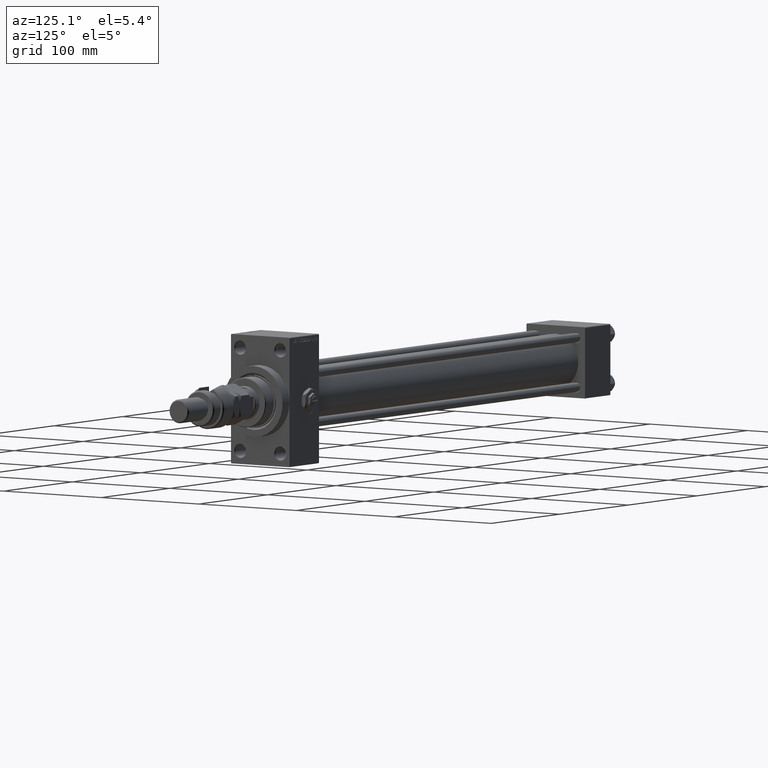
[diagram: clean part render]
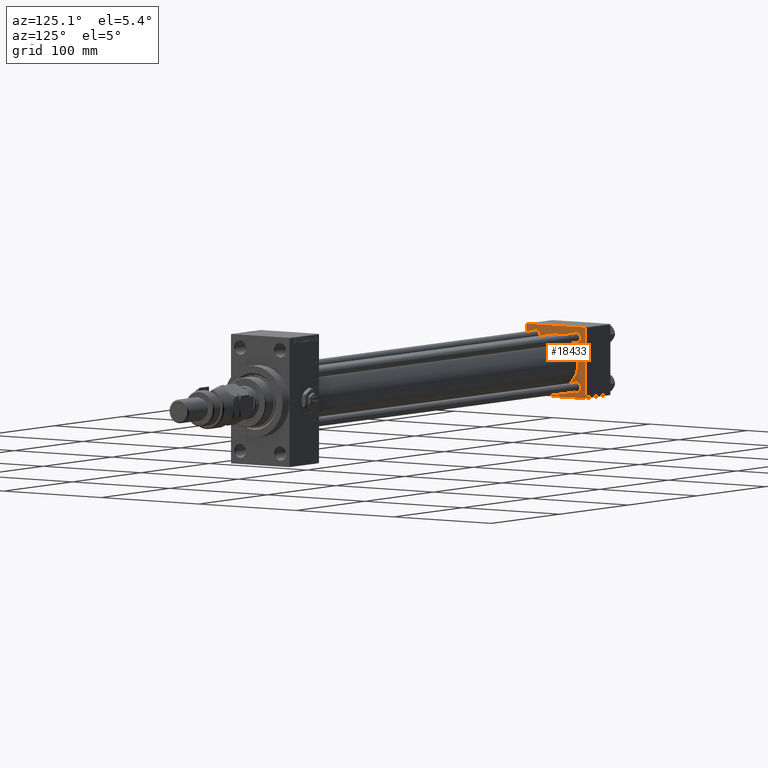
[diagram: same view with one face highlighted and labeled with its STEP entity id]
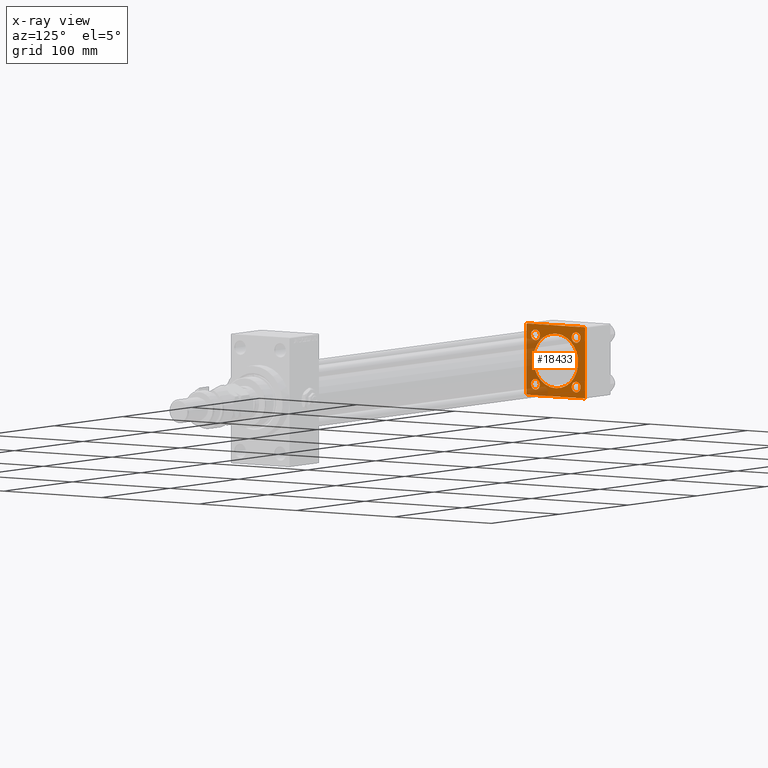
[diagram: x-ray of the same camera — body ghosted, the highlighted face saturated]
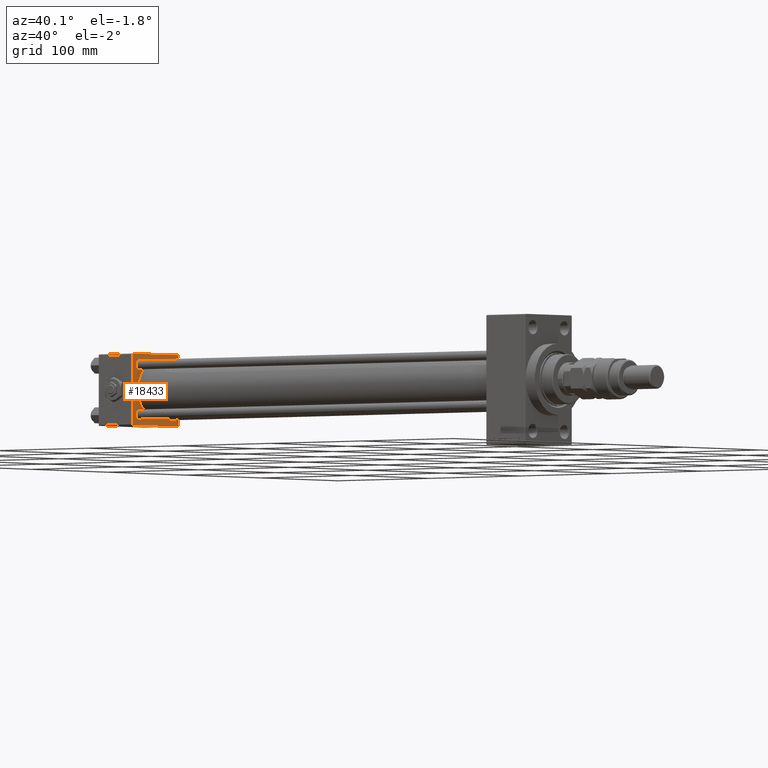
[diagram: same view with one face highlighted and labeled with its STEP entity id]
A machine part, auxiliary view. The second image highlights one B-rep face of the part: STEP entity #18433.
The next image is the same camera in x-ray: the body ghosted, the highlighted face saturated — about 30% of this face is hidden behind the body in this view.
A second angle (auxiliary view) of the same face is appended — the face is thin or edge-on in the first view.
In plain terms, the highlighted planar face has unit normal (-1, 0, 0).
Its self-contained STEP definition (entity closure, byte-faithful):
#447 = VECTOR ( 'NONE', #30084, 1000.000000000000114 ) ;
#714 = LINE ( 'NONE', #36101, #15416 ) ;
#757 = VERTEX_POINT ( 'NONE', #49649 ) ;
#972 = CIRCLE ( 'NONE', #48699, 4.499999999999948486 ) ;
#1078 = AXIS2_PLACEMENT_3D ( 'NONE', #18814, #35065, #38751 ) ;
#1252 = CARTESIAN_POINT ( 'NONE',  ( 37.00000000000000000, -29.50000000000000000, -30.00000000000000711 ) ) ;
#2780 = VECTOR ( 'NONE', #8821, 1000.000000000000000 ) ;
#3938 = CARTESIAN_POINT ( 'NONE',  ( 37.00000000000000000, 20.84999999999999787, 16.35000000000005116 ) ) ;
#4206 = VERTEX_POINT ( 'NONE', #49062 ) ;
#4613 = EDGE_CURVE ( 'NONE', #4206, #26607, #45304, .T. ) ;
#5128 = VERTEX_POINT ( 'NONE', #35006 ) ;
#5214 = CARTESIAN_POINT ( 'NONE',  ( 37.00000000000000000, -29.49999999999998579, 29.99999999999999289 ) ) ;
#5300 = EDGE_LOOP ( 'NONE', ( #38069, #23736 ) ) ;
#5595 = CIRCLE ( 'NONE', #44943, 4.499999999999948486 ) ;
#5912 = CARTESIAN_POINT ( 'NONE',  ( 36.99999999999997868, -2.602085213965210642E-15, 23.00000000000000000 ) ) ;
#6114 = AXIS2_PLACEMENT_3D ( 'NONE', #15644, #34543, #34806 ) ;
#6404 = ORIENTED_EDGE ( 'NONE', *, *, #23481, .T. ) ;
#7136 = VECTOR ( 'NONE', #24468, 1000.000000000000114 ) ;
#7230 = CARTESIAN_POINT ( 'NONE',  ( 37.00000000000000000, 20.84999999999999787, -20.85000000000000142 ) ) ;
#7622 = VERTEX_POINT ( 'NONE', #9310 ) ;
#7660 = CARTESIAN_POINT ( 'NONE',  ( 37.00000000000000000, -30.00000000000000000, 29.49999999999999289 ) ) ;
#7694 = LINE ( 'NONE', #44402, #7136 ) ;
#8821 = DIRECTION ( 'NONE',  ( 0.000000000000000000, 0.000000000000000000, -1.000000000000000000 ) ) ;
#9086 = CARTESIAN_POINT ( 'NONE',  ( 37.00000000000000000, 29.49999999999999289, 30.00000000000000000 ) ) ;
#9310 = CARTESIAN_POINT ( 'NONE',  ( 37.00000000000000000, 29.99999999999999289, 29.50000000000000000 ) ) ;
#9354 = AXIS2_PLACEMENT_3D ( 'NONE', #33741, #13544, #40827 ) ;
#9759 = ORIENTED_EDGE ( 'NONE', *, *, #14981, .F. ) ;
#10203 = CARTESIAN_POINT ( 'NONE',  ( 36.99999999999997868, -2.602085213965210642E-15, 0.000000000000000000 ) ) ;
#10490 = VERTEX_POINT ( 'NONE', #1252 ) ;
#10572 = VECTOR ( 'NONE', #27433, 1000.000000000000114 ) ;
#11053 = CIRCLE ( 'NONE', #9354, 4.499999999999948486 ) ;
#11343 = VECTOR ( 'NONE', #35249, 1000.000000000000000 ) ;
#11897 = VECTOR ( 'NONE', #28632, 1000.000000000000000 ) ;
#13127 = AXIS2_PLACEMENT_3D ( 'NONE', #10203, #45877, #41939 ) ;
#13281 = LINE ( 'NONE', #37148, #2780 ) ;
#13544 = DIRECTION ( 'NONE',  ( -1.000000000000000000, 0.000000000000000000, -0.000000000000000000 ) ) ;
#14094 = FACE_OUTER_BOUND ( 'NONE', #18270, .T. ) ;
#14910 = CARTESIAN_POINT ( 'NONE',  ( 37.00000000000000000, -20.84999999999999076, -16.35000000000005471 ) ) ;
#14933 = VERTEX_POINT ( 'NONE', #7660 ) ;
#14981 = EDGE_CURVE ( 'NONE', #4206, #10490, #28377, .T. ) ;
#15085 = ORIENTED_EDGE ( 'NONE', *, *, #39504, .T. ) ;
#15416 = VECTOR ( 'NONE', #32435, 1000.000000000000000 ) ;
#15483 = VERTEX_POINT ( 'NONE', #24303 ) ;
#15605 = DIRECTION ( 'NONE',  ( -1.000000000000000000, 0.000000000000000000, -0.000000000000000000 ) ) ;
#15644 = CARTESIAN_POINT ( 'NONE',  ( 37.00000000000000000, 0.000000000000000000, 0.000000000000000000 ) ) ;
#15696 = EDGE_CURVE ( 'NONE', #14933, #15483, #13281, .T. ) ;
#16568 = CARTESIAN_POINT ( 'NONE',  ( 37.00000000000000000, 29.99999999999999289, -30.00000000000000000 ) ) ;
#16754 = EDGE_CURVE ( 'NONE', #35440, #46021, #11053, .T. ) ;
#16848 = ORIENTED_EDGE ( 'NONE', *, *, #47855, .T. ) ;
#17845 = CIRCLE ( 'NONE', #1078, 23.00000000000000000 ) ;
#18270 = EDGE_LOOP ( 'NONE', ( #9759, #30847, #35276, #48909, #50676, #42797, #41199, #6404 ) ) ;
#18405 = CARTESIAN_POINT ( 'NONE',  ( 37.00000000000000000, 20.84999999999999787, 20.85000000000000142 ) ) ;
#18433 = ADVANCED_FACE ( 'NONE', ( #41886, #25381, #22483, #21715, #33501, #14094 ), #49253, .F. ) ;
#18435 = DIRECTION ( 'NONE',  ( 0.000000000000000000, 0.000000000000000000, 1.000000000000000000 ) ) ;
#18525 = EDGE_CURVE ( 'NONE', #48301, #5128, #17845, .T. ) ;
#18701 = CARTESIAN_POINT ( 'NONE',  ( 37.00000000000000000, -20.84999999999999076, 20.85000000000000497 ) ) ;
#18814 = CARTESIAN_POINT ( 'NONE',  ( 36.99999999999997868, -2.602085213965210642E-15, 0.000000000000000000 ) ) ;
#20137 = CIRCLE ( 'NONE', #38604, 4.499999999999948486 ) ;
#20213 = AXIS2_PLACEMENT_3D ( 'NONE', #30128, #39043, #38257 ) ;
#20537 = DIRECTION ( 'NONE',  ( 0.000000000000000000, 0.000000000000000000, 1.000000000000000000 ) ) ;
#21274 = ORIENTED_EDGE ( 'NONE', *, *, #33519, .T. ) ;
#21715 = FACE_BOUND ( 'NONE', #27543, .T. ) ;
#22460 = DIRECTION ( 'NONE',  ( -1.000000000000000000, 0.000000000000000000, -0.000000000000000000 ) ) ;
#22483 = FACE_BOUND ( 'NONE', #31125, .T. ) ;
#23481 = EDGE_CURVE ( 'NONE', #15483, #10490, #29823, .T. ) ;
#23694 = EDGE_CURVE ( 'NONE', #7622, #46197, #7694, .T. ) ;
#23736 = ORIENTED_EDGE ( 'NONE', *, *, #48221, .F. ) ;
#23744 = CARTESIAN_POINT ( 'NONE',  ( 37.00000000000000000, -30.00000000000000000, 29.49999999999999289 ) ) ;
#24145 = EDGE_LOOP ( 'NONE', ( #37090, #21274 ) ) ;
#24158 = ORIENTED_EDGE ( 'NONE', *, *, #31505, .T. ) ;
#24266 = LINE ( 'NONE', #23744, #10572 ) ;
#24303 = CARTESIAN_POINT ( 'NONE',  ( 37.00000000000000000, -30.00000000000000000, -29.50000000000001776 ) ) ;
#24468 = DIRECTION ( 'NONE',  ( 0.000000000000000000, -0.7071067811865474617, 0.7071067811865474617 ) ) ;
#24609 = CARTESIAN_POINT ( 'NONE',  ( 37.00000000000000000, 20.84999999999999787, 25.34999999999994813 ) ) ;
#24944 = EDGE_CURVE ( 'NONE', #46197, #28619, #43380, .T. ) ;
#25378 = VERTEX_POINT ( 'NONE', #24609 ) ;
#25381 = FACE_BOUND ( 'NONE', #31369, .T. ) ;
#26387 = DIRECTION ( 'NONE',  ( 0.000000000000000000, 0.000000000000000000, 1.000000000000000000 ) ) ;
#26607 = VERTEX_POINT ( 'NONE', #34777 ) ;
#26665 = CARTESIAN_POINT ( 'NONE',  ( 37.00000000000000000, -29.50000000000001066, -30.00000000000000711 ) ) ;
#27395 = CIRCLE ( 'NONE', #13127, 23.00000000000000000 ) ;
#27433 = DIRECTION ( 'NONE',  ( -0.000000000000000000, -0.7071067811865474617, -0.7071067811865474617 ) ) ;
#27543 = EDGE_LOOP ( 'NONE', ( #16848, #36269 ) ) ;
#28377 = LINE ( 'NONE', #16568, #11897 ) ;
#28619 = VERTEX_POINT ( 'NONE', #5214 ) ;
#28632 = DIRECTION ( 'NONE',  ( 0.000000000000000000, -1.000000000000000000, -1.156482317317871725E-16 ) ) ;
#29689 = DIRECTION ( 'NONE',  ( 0.000000000000000000, 0.000000000000000000, 1.000000000000000000 ) ) ;
#29823 = LINE ( 'NONE', #26665, #447 ) ;
#30084 = DIRECTION ( 'NONE',  ( 0.000000000000000000, 0.7071067811865474617, -0.7071067811865474617 ) ) ;
#30128 = CARTESIAN_POINT ( 'NONE',  ( 37.00000000000000000, -20.84999999999999076, 20.85000000000000497 ) ) ;
#30356 = VECTOR ( 'NONE', #41629, 999.9999999999998863 ) ;
#30847 = ORIENTED_EDGE ( 'NONE', *, *, #4613, .T. ) ;
#31125 = EDGE_LOOP ( 'NONE', ( #24158, #32020 ) ) ;
#31354 = DIRECTION ( 'NONE',  ( -1.000000000000000000, 0.000000000000000000, -0.000000000000000000 ) ) ;
#31369 = EDGE_LOOP ( 'NONE', ( #15085, #38124 ) ) ;
#31505 = EDGE_CURVE ( 'NONE', #38139, #757, #20137, .T. ) ;
#32020 = ORIENTED_EDGE ( 'NONE', *, *, #33098, .T. ) ;
#32067 = DIRECTION ( 'NONE',  ( -1.000000000000000000, 0.000000000000000000, -0.000000000000000000 ) ) ;
#32183 = AXIS2_PLACEMENT_3D ( 'NONE', #7230, #31354, #26387 ) ;
#32435 = DIRECTION ( 'NONE',  ( 0.000000000000000000, 0.000000000000000000, -1.000000000000000000 ) ) ;
#33098 = EDGE_CURVE ( 'NONE', #757, #38139, #46156, .T. ) ;
#33191 = AXIS2_PLACEMENT_3D ( 'NONE', #43171, #22460, #42396 ) ;
#33501 = FACE_BOUND ( 'NONE', #5300, .T. ) ;
#33519 = EDGE_CURVE ( 'NONE', #46021, #35440, #972, .T. ) ;
#33741 = CARTESIAN_POINT ( 'NONE',  ( 37.00000000000000000, -20.84999999999999076, -20.85000000000000497 ) ) ;
#34543 = DIRECTION ( 'NONE',  ( -1.000000000000000000, 0.000000000000000000, -0.000000000000000000 ) ) ;
#34740 = AXIS2_PLACEMENT_3D ( 'NONE', #48585, #32067, #20537 ) ;
#34777 = CARTESIAN_POINT ( 'NONE',  ( 37.00000000000000000, 29.99999999999999289, -29.50000000000000000 ) ) ;
#34806 = DIRECTION ( 'NONE',  ( -0.000000000000000000, 0.000000000000000000, 1.000000000000000000 ) ) ;
#35006 = CARTESIAN_POINT ( 'NONE',  ( 36.99999999999997868, 2.146024240737012665E-16, -23.00000000000000000 ) ) ;
#35065 = DIRECTION ( 'NONE',  ( 1.000000000000000000, -0.000000000000000000, 0.000000000000000000 ) ) ;
#35249 = DIRECTION ( 'NONE',  ( 0.000000000000000000, -1.000000000000000000, -1.156482317317871725E-16 ) ) ;
#35276 = ORIENTED_EDGE ( 'NONE', *, *, #38205, .F. ) ;
#35440 = VERTEX_POINT ( 'NONE', #47702 ) ;
#35768 = CARTESIAN_POINT ( 'NONE',  ( 37.00000000000000000, 29.99999999999999289, 30.00000000000000000 ) ) ;
#36101 = CARTESIAN_POINT ( 'NONE',  ( 37.00000000000000000, 29.99999999999999289, 30.00000000000000000 ) ) ;
#36269 = ORIENTED_EDGE ( 'NONE', *, *, #47205, .T. ) ;
#36697 = VERTEX_POINT ( 'NONE', #38491 ) ;
#37090 = ORIENTED_EDGE ( 'NONE', *, *, #16754, .T. ) ;
#37148 = CARTESIAN_POINT ( 'NONE',  ( 37.00000000000000000, -30.00000000000000000, 29.99999999999999289 ) ) ;
#37944 = VERTEX_POINT ( 'NONE', #3938 ) ;
#38064 = CIRCLE ( 'NONE', #32183, 4.499999999999948486 ) ;
#38069 = ORIENTED_EDGE ( 'NONE', *, *, #18525, .F. ) ;
#38124 = ORIENTED_EDGE ( 'NONE', *, *, #39866, .T. ) ;
#38139 = VERTEX_POINT ( 'NONE', #46372 ) ;
#38205 = EDGE_CURVE ( 'NONE', #7622, #26607, #714, .T. ) ;
#38257 = DIRECTION ( 'NONE',  ( 0.000000000000000000, 0.000000000000000000, 1.000000000000000000 ) ) ;
#38491 = CARTESIAN_POINT ( 'NONE',  ( 37.00000000000000000, 20.84999999999999787, -25.34999999999994813 ) ) ;
#38604 = AXIS2_PLACEMENT_3D ( 'NONE', #18701, #42302, #18435 ) ;
#38751 = DIRECTION ( 'NONE',  ( 0.000000000000000000, 0.000000000000000000, 1.000000000000000000 ) ) ;
#39043 = DIRECTION ( 'NONE',  ( -1.000000000000000000, 0.000000000000000000, -0.000000000000000000 ) ) ;
#39504 = EDGE_CURVE ( 'NONE', #36697, #44461, #38064, .T. ) ;
#39732 = DIRECTION ( 'NONE',  ( 0.000000000000000000, 0.000000000000000000, 1.000000000000000000 ) ) ;
#39866 = EDGE_CURVE ( 'NONE', #44461, #36697, #44799, .T. ) ;
#39987 = CARTESIAN_POINT ( 'NONE',  ( 37.00000000000000000, 20.84999999999999787, -16.35000000000005116 ) ) ;
#40827 = DIRECTION ( 'NONE',  ( 0.000000000000000000, 0.000000000000000000, 1.000000000000000000 ) ) ;
#41199 = ORIENTED_EDGE ( 'NONE', *, *, #15696, .T. ) ;
#41629 = DIRECTION ( 'NONE',  ( -0.000000000000000000, 0.7071067811865574537, 0.7071067811865376918 ) ) ;
#41886 = FACE_BOUND ( 'NONE', #24145, .T. ) ;
#41939 = DIRECTION ( 'NONE',  ( 0.000000000000000000, 0.000000000000000000, 1.000000000000000000 ) ) ;
#42302 = DIRECTION ( 'NONE',  ( -1.000000000000000000, 0.000000000000000000, -0.000000000000000000 ) ) ;
#42396 = DIRECTION ( 'NONE',  ( 0.000000000000000000, 0.000000000000000000, 1.000000000000000000 ) ) ;
#42797 = ORIENTED_EDGE ( 'NONE', *, *, #47324, .T. ) ;
#43171 = CARTESIAN_POINT ( 'NONE',  ( 37.00000000000000000, 20.84999999999999787, 20.85000000000000142 ) ) ;
#43380 = LINE ( 'NONE', #35768, #11343 ) ;
#44402 = CARTESIAN_POINT ( 'NONE',  ( 37.00000000000000000, 29.49999999999999289, 30.00000000000000000 ) ) ;
#44461 = VERTEX_POINT ( 'NONE', #39987 ) ;
#44799 = CIRCLE ( 'NONE', #34740, 4.499999999999948486 ) ;
#44943 = AXIS2_PLACEMENT_3D ( 'NONE', #18405, #49880, #29689 ) ;
#45304 = LINE ( 'NONE', #45824, #30356 ) ;
#45824 = CARTESIAN_POINT ( 'NONE',  ( 37.00000000000000000, 29.99999999999999289, -29.50000000000000000 ) ) ;
#45877 = DIRECTION ( 'NONE',  ( 1.000000000000000000, -0.000000000000000000, 0.000000000000000000 ) ) ;
#46021 = VERTEX_POINT ( 'NONE', #14910 ) ;
#46156 = CIRCLE ( 'NONE', #20213, 4.499999999999948486 ) ;
#46197 = VERTEX_POINT ( 'NONE', #9086 ) ;
#46372 = CARTESIAN_POINT ( 'NONE',  ( 37.00000000000000000, -20.84999999999999076, 16.35000000000005471 ) ) ;
#47205 = EDGE_CURVE ( 'NONE', #25378, #37944, #48291, .T. ) ;
#47324 = EDGE_CURVE ( 'NONE', #28619, #14933, #24266, .T. ) ;
#47702 = CARTESIAN_POINT ( 'NONE',  ( 37.00000000000000000, -20.84999999999999076, -25.34999999999995168 ) ) ;
#47855 = EDGE_CURVE ( 'NONE', #37944, #25378, #5595, .T. ) ;
#48221 = EDGE_CURVE ( 'NONE', #5128, #48301, #27395, .T. ) ;
#48291 = CIRCLE ( 'NONE', #33191, 4.499999999999948486 ) ;
#48301 = VERTEX_POINT ( 'NONE', #5912 ) ;
#48585 = CARTESIAN_POINT ( 'NONE',  ( 37.00000000000000000, 20.84999999999999787, -20.85000000000000142 ) ) ;
#48699 = AXIS2_PLACEMENT_3D ( 'NONE', #51541, #15605, #39732 ) ;
#48909 = ORIENTED_EDGE ( 'NONE', *, *, #23694, .T. ) ;
#49062 = CARTESIAN_POINT ( 'NONE',  ( 37.00000000000000000, 29.49999999999997868, -30.00000000000000000 ) ) ;
#49253 = PLANE ( 'NONE',  #6114 ) ;
#49649 = CARTESIAN_POINT ( 'NONE',  ( 37.00000000000000000, -20.84999999999999076, 25.34999999999995168 ) ) ;
#49880 = DIRECTION ( 'NONE',  ( -1.000000000000000000, 0.000000000000000000, -0.000000000000000000 ) ) ;
#50676 = ORIENTED_EDGE ( 'NONE', *, *, #24944, .T. ) ;
#51541 = CARTESIAN_POINT ( 'NONE',  ( 37.00000000000000000, -20.84999999999999076, -20.85000000000000497 ) ) ;